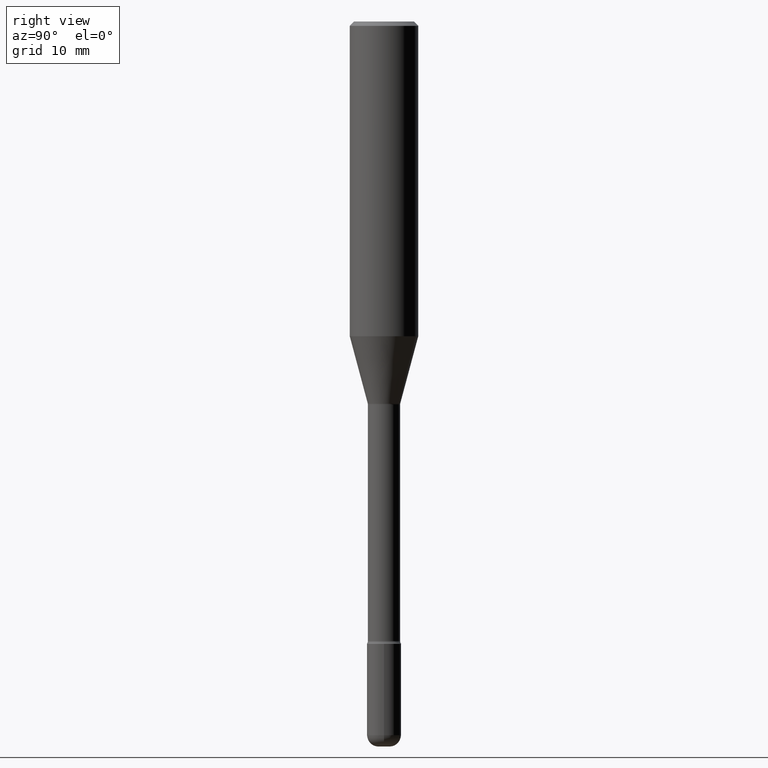
[diagram: clean part render]
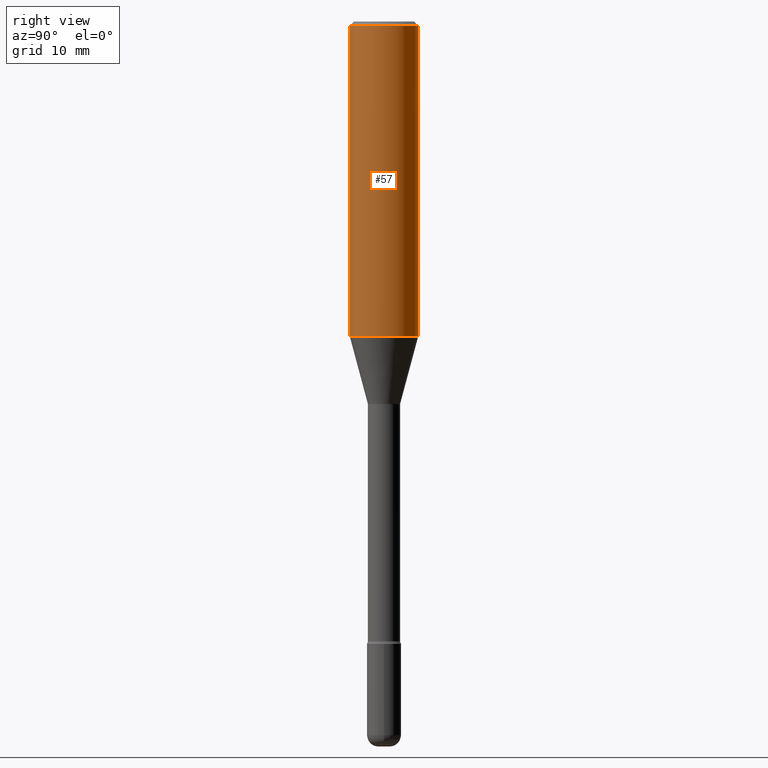
[diagram: same view with one face highlighted and labeled with its STEP entity id]
A machine part, right view. The second image highlights one B-rep face of the part: STEP entity #57.
In plain terms, the highlighted cylindrical surface (edge-blend (fillet) strip) has radius 2.9997 mm, axis along (-0, 0, 1).
Its self-contained STEP definition (entity closure, byte-faithful):
#7 = DIRECTION ( 'NONE',  ( -6.982962677686265922E-15, -1.000000000000000000, 3.491702207079213622E-15 ) ) ;
#18 = CARTESIAN_POINT ( 'NONE',  ( 3.667971862080338817E-31, -5.237553310618831452E-17, -0.01500000000000002720 ) ) ;
#24 = VERTEX_POINT ( 'NONE', #45 ) ;
#45 = CARTESIAN_POINT ( 'NONE',  ( -8.246878922347212441E-16, -0.1181000000000037714, -1.085273619446188276 ) ) ;
#57 = ADVANCED_FACE ( 'NONE', ( #276 ), #484, .T. ) ;
#69 = CARTESIAN_POINT ( 'NONE',  ( 2.653835399191132044E-29, -3.789452292305104081E-15, -1.085273619446188720 ) ) ;
#89 = CARTESIAN_POINT ( 'NONE',  ( 8.391509709326781971E-16, 0.1180999999999999966, 6.570336823519088696E-17 ) ) ;
#94 = DIRECTION ( 'NONE',  ( -2.445314574720221172E-29, 3.491702207079214016E-15, 1.000000000000000000 ) ) ;
#118 = LINE ( 'NONE', #217, #442 ) ;
#134 = EDGE_CURVE ( 'NONE', #511, #380, #486, .T. ) ;
#188 = CARTESIAN_POINT ( 'NONE',  ( 8.391509709327049197E-16, 0.1180999999999962358, -1.085273619446189164 ) ) ;
#204 = EDGE_CURVE ( 'NONE', #24, #511, #503, .T. ) ;
#205 = EDGE_LOOP ( 'NONE', ( #555, #366, #208, #278 ) ) ;
#208 = ORIENTED_EDGE ( 'NONE', *, *, #234, .F. ) ;
#214 = CIRCLE ( 'NONE', #269, 0.1180999999999999966 ) ;
#217 = CARTESIAN_POINT ( 'NONE',  ( -8.246878922347479668E-16, -0.1180999999999999966, 8.904434295473012272E-16 ) ) ;
#234 = EDGE_CURVE ( 'NONE', #425, #380, #214, .T. ) ;
#258 = DIRECTION ( 'NONE',  ( -2.445314574720221172E-29, 3.491702207079214016E-15, 1.000000000000000000 ) ) ;
#269 = AXIS2_PLACEMENT_3D ( 'NONE', #18, #492, #422 ) ;
#273 = CARTESIAN_POINT ( 'NONE',  ( -1.169113584055446105E-44, 1.669184350826100908E-30, 4.780733988912460139E-16 ) ) ;
#276 = FACE_OUTER_BOUND ( 'NONE', #205, .T. ) ;
#278 = ORIENTED_EDGE ( 'NONE', *, *, #440, .F. ) ;
#283 = DIRECTION ( 'NONE',  ( -6.982962677686265922E-15, -1.000000000000000000, 3.469747663417777397E-15 ) ) ;
#306 = VECTOR ( 'NONE', #94, 39.37007874015748143 ) ;
#341 = CARTESIAN_POINT ( 'NONE',  ( 8.391509709327049197E-16, 0.1180999999999999411, -0.01500000000000044006 ) ) ;
#365 = DIRECTION ( 'NONE',  ( -2.445314574720221452E-29, 3.491702207079214016E-15, 1.000000000000000000 ) ) ;
#366 = ORIENTED_EDGE ( 'NONE', *, *, #134, .T. ) ;
#380 = VERTEX_POINT ( 'NONE', #341 ) ;
#382 = CARTESIAN_POINT ( 'NONE',  ( -8.246878922347475723E-16, -0.1181000000000000522, -0.01499999999999961607 ) ) ;
#415 = AXIS2_PLACEMENT_3D ( 'NONE', #69, #537, #283 ) ;
#422 = DIRECTION ( 'NONE',  ( -6.982962677686265922E-15, -1.000000000000000000, 3.487819265831411744E-15 ) ) ;
#425 = VERTEX_POINT ( 'NONE', #382 ) ;
#440 = EDGE_CURVE ( 'NONE', #24, #425, #118, .T. ) ;
#442 = VECTOR ( 'NONE', #258, 39.37007874015748143 ) ;
#479 = AXIS2_PLACEMENT_3D ( 'NONE', #273, #365, #7 ) ;
#484 = CYLINDRICAL_SURFACE ( 'NONE', #479, 0.1180999999999999966 ) ;
#486 = LINE ( 'NONE', #89, #306 ) ;
#492 = DIRECTION ( 'NONE',  ( -2.445314574720221452E-29, 3.491702207079214016E-15, 1.000000000000000000 ) ) ;
#503 = CIRCLE ( 'NONE', #415, 0.1180999999999999966 ) ;
#511 = VERTEX_POINT ( 'NONE', #188 ) ;
#537 = DIRECTION ( 'NONE',  ( -2.445314574720221452E-29, 3.491702207079214016E-15, 1.000000000000000000 ) ) ;
#555 = ORIENTED_EDGE ( 'NONE', *, *, #204, .T. ) ;